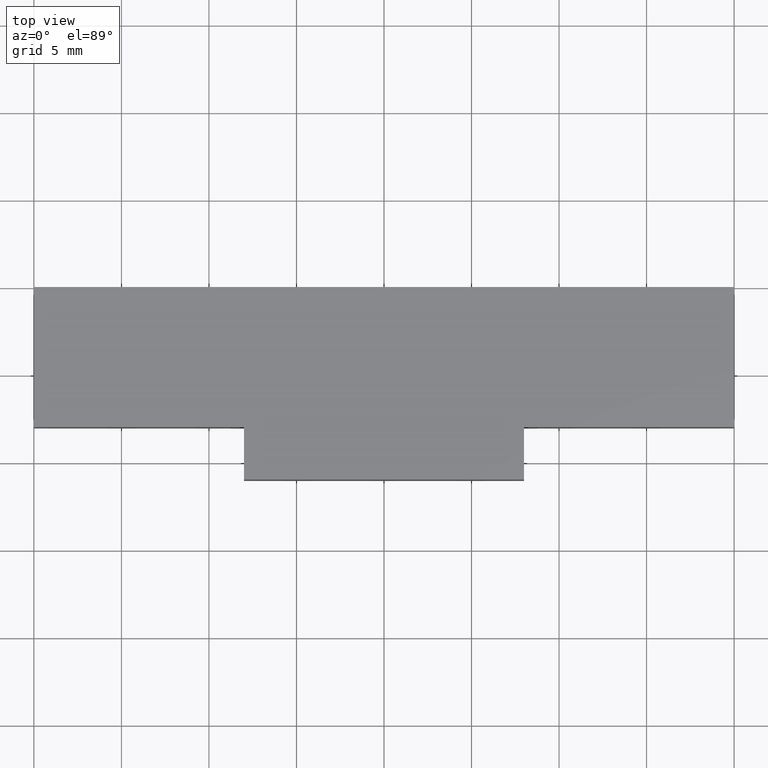
[diagram: clean part render]
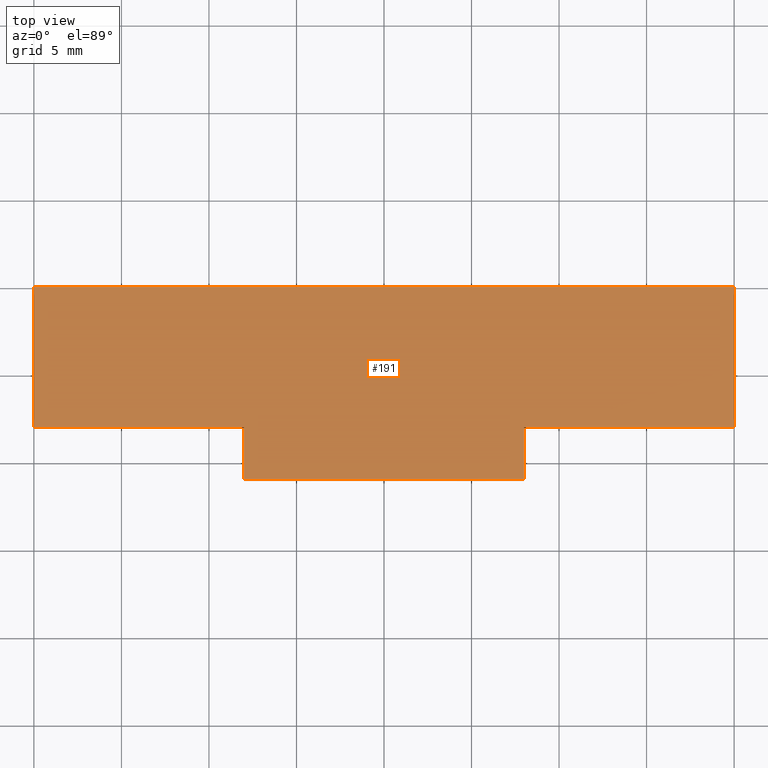
[diagram: same view with one face highlighted and labeled with its STEP entity id]
A machine part, top view. The second image highlights one B-rep face of the part: STEP entity #191.
In plain terms, the highlighted planar face has unit normal (0, 0, 1).
Its self-contained STEP definition (entity closure, byte-faithful):
#25=FACE_OUTER_BOUND('',#35,.T.);
#35=EDGE_LOOP('',(#164,#165,#166,#167,#168,#169,#170,#171));
#44=LINE('',#292,#68);
#47=LINE('',#297,#71);
#49=LINE('',#301,#73);
#51=LINE('',#305,#75);
#53=LINE('',#309,#77);
#55=LINE('',#313,#79);
#57=LINE('',#317,#81);
#59=LINE('',#320,#83);
#68=VECTOR('',#239,10.);
#71=VECTOR('',#244,10.);
#73=VECTOR('',#248,10.);
#75=VECTOR('',#252,10.);
#77=VECTOR('',#256,10.);
#79=VECTOR('',#260,10.);
#81=VECTOR('',#264,10.);
#83=VECTOR('',#268,10.);
#92=VERTEX_POINT('',#290);
#93=VERTEX_POINT('',#291);
#94=VERTEX_POINT('',#296);
#95=VERTEX_POINT('',#300);
#96=VERTEX_POINT('',#304);
#97=VERTEX_POINT('',#308);
#98=VERTEX_POINT('',#312);
#99=VERTEX_POINT('',#316);
#108=EDGE_CURVE('',#92,#93,#44,.T.);
#111=EDGE_CURVE('',#93,#94,#47,.T.);
#113=EDGE_CURVE('',#94,#95,#49,.T.);
#115=EDGE_CURVE('',#95,#96,#51,.T.);
#117=EDGE_CURVE('',#96,#97,#53,.T.);
#119=EDGE_CURVE('',#97,#98,#55,.T.);
#121=EDGE_CURVE('',#98,#99,#57,.T.);
#123=EDGE_CURVE('',#99,#92,#59,.T.);
#164=ORIENTED_EDGE('',*,*,#108,.F.);
#165=ORIENTED_EDGE('',*,*,#123,.F.);
#166=ORIENTED_EDGE('',*,*,#121,.F.);
#167=ORIENTED_EDGE('',*,*,#119,.F.);
#168=ORIENTED_EDGE('',*,*,#117,.F.);
#169=ORIENTED_EDGE('',*,*,#115,.F.);
#170=ORIENTED_EDGE('',*,*,#113,.F.);
#171=ORIENTED_EDGE('',*,*,#111,.F.);
#181=PLANE('',#224);
#191=ADVANCED_FACE('',(#25),#181,.T.);
#224=AXIS2_PLACEMENT_3D('',#321,#269,#270);
#239=DIRECTION('',(0.,-1.,0.));
#244=DIRECTION('',(-1.,0.,0.));
#248=DIRECTION('',(0.,1.,0.));
#252=DIRECTION('',(-1.,0.,0.));
#256=DIRECTION('',(0.,1.,0.));
#260=DIRECTION('',(1.,1.23259516440783E-32,0.));
#264=DIRECTION('',(0.,-1.,0.));
#268=DIRECTION('',(-1.,0.,0.));
#269=DIRECTION('center_axis',(0.,0.,1.));
#270=DIRECTION('ref_axis',(1.,0.,0.));
#290=CARTESIAN_POINT('',(8.,-8.,2.5));
#291=CARTESIAN_POINT('',(8.,-11.,2.5));
#292=CARTESIAN_POINT('',(8.,-8.,2.5));
#296=CARTESIAN_POINT('',(-8.,-11.,2.5));
#297=CARTESIAN_POINT('',(8.,-11.,2.5));
#300=CARTESIAN_POINT('',(-8.,-8.,2.5));
#301=CARTESIAN_POINT('',(-8.,-11.,2.5));
#304=CARTESIAN_POINT('',(-20.,-8.,2.5));
#305=CARTESIAN_POINT('',(-8.,-8.,2.5));
#308=CARTESIAN_POINT('',(-20.,-2.54434081114058E-15,2.5));
#309=CARTESIAN_POINT('',(-20.,-8.,2.5));
#312=CARTESIAN_POINT('',(20.,-2.54434081114058E-15,2.5));
#313=CARTESIAN_POINT('',(-20.,-2.54434081114058E-15,2.5));
#316=CARTESIAN_POINT('',(20.,-8.,2.5));
#317=CARTESIAN_POINT('',(20.,-2.54434081114058E-15,2.5));
#320=CARTESIAN_POINT('',(20.,-8.,2.5));
#321=CARTESIAN_POINT('Origin',(8.67361737988404E-16,-4.79411764705882,2.5));